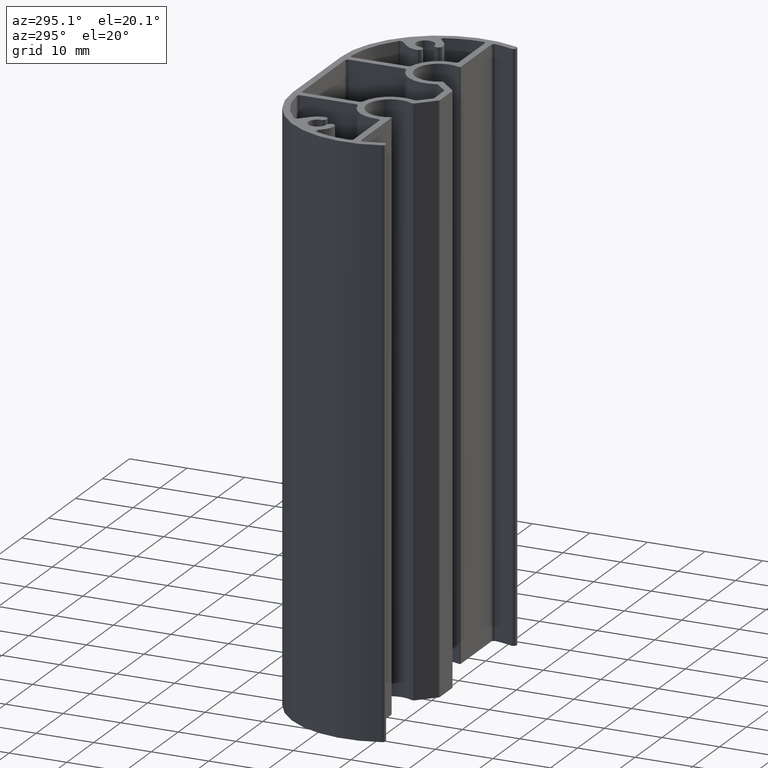
[diagram: clean part render]
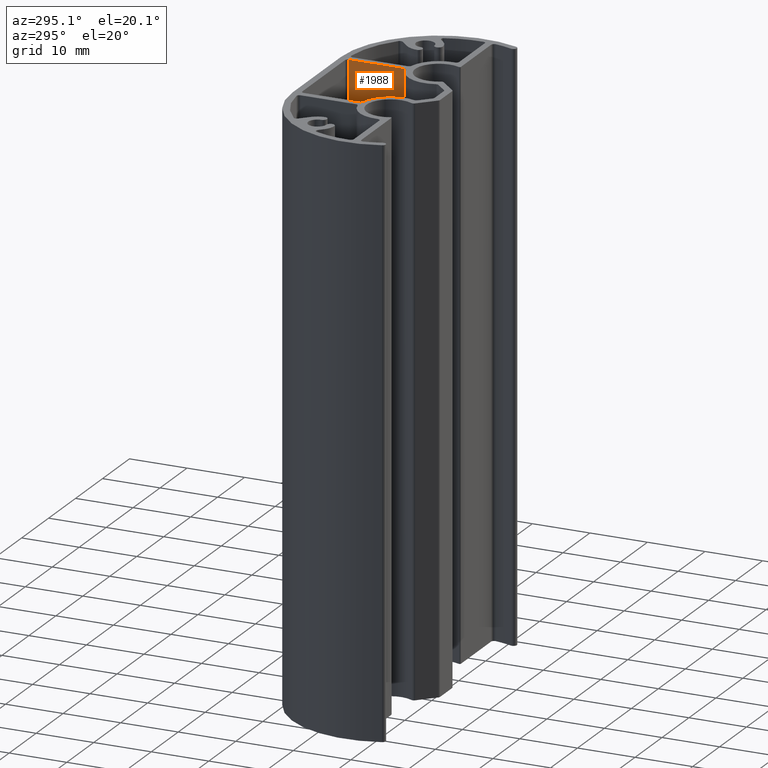
[diagram: same view with one face highlighted and labeled with its STEP entity id]
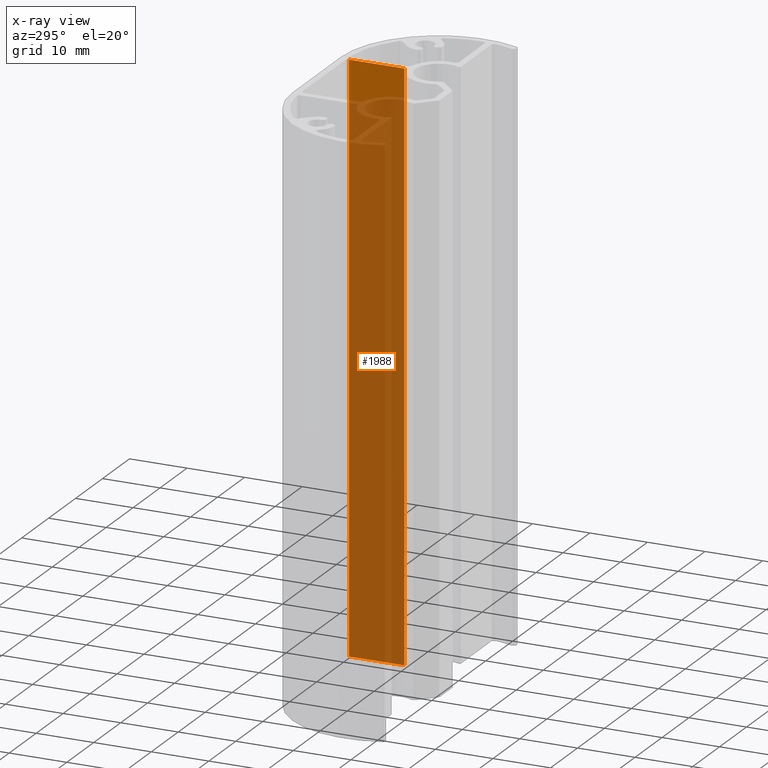
[diagram: x-ray of the same camera — body ghosted, the highlighted face saturated]
A machine part, auxiliary view. The second image highlights one B-rep face of the part: STEP entity #1988.
The next image is the same camera in x-ray: the body ghosted, the highlighted face saturated — about 94% of this face is hidden behind the body in this view.
In plain terms, the highlighted planar face has unit normal (-1, 0, 0).
Its self-contained STEP definition (entity closure, byte-faithful):
#867=CARTESIAN_POINT('',(8.400000000016235,-11.305265590006115,100.0));
#868=VERTEX_POINT('',#867);
#876=CARTESIAN_POINT('',(8.400000000015325,-1.699999999967758,100.0));
#877=VERTEX_POINT('',#876);
#878=CARTESIAN_POINT('',(8.400000000016235,-11.305265590006115,100.0));
#879=DIRECTION('',(0.0,1.0,0.0));
#880=VECTOR('',#879,9.605265590038357);
#881=LINE('',#878,#880);
#882=EDGE_CURVE('',#868,#877,#881,.T.);
#1253=CARTESIAN_POINT('',(8.400000000015325,-1.699999999967758,200.0));
#1254=VERTEX_POINT('',#1253);
#1262=CARTESIAN_POINT('',(8.400000000016235,-11.305265590006115,200.0));
#1263=VERTEX_POINT('',#1262);
#1264=CARTESIAN_POINT('',(8.400000000016235,-11.305265590006115,200.0));
#1265=DIRECTION('',(0.0,1.0,0.0));
#1266=VECTOR('',#1265,9.605265590038357);
#1267=LINE('',#1264,#1266);
#1268=EDGE_CURVE('',#1263,#1254,#1267,.T.);
#1961=CARTESIAN_POINT('',(8.400000000016235,-11.305265590006115,200.0));
#1962=DIRECTION('',(0.0,0.0,-1.0));
#1963=VECTOR('',#1962,100.0);
#1964=LINE('',#1961,#1963);
#1965=EDGE_CURVE('',#1263,#868,#1964,.T.);
#1972=CARTESIAN_POINT('',(8.400000000016235,-11.305265590006115,200.0));
#1973=DIRECTION('',(-1.0,0.0,0.0));
#1974=DIRECTION('',(0.0,1.0,0.0));
#1975=AXIS2_PLACEMENT_3D('',#1972,#1973,#1974);
#1976=PLANE('',#1975);
#1977=ORIENTED_EDGE('',*,*,#1268,.T.);
#1978=CARTESIAN_POINT('',(8.400000000015325,-1.699999999967758,200.0));
#1979=DIRECTION('',(0.0,0.0,-1.0));
#1980=VECTOR('',#1979,100.0);
#1981=LINE('',#1978,#1980);
#1982=EDGE_CURVE('',#1254,#877,#1981,.T.);
#1983=ORIENTED_EDGE('',*,*,#1982,.T.);
#1984=ORIENTED_EDGE('',*,*,#882,.F.);
#1985=ORIENTED_EDGE('',*,*,#1965,.F.);
#1986=EDGE_LOOP('',(#1977,#1983,#1984,#1985));
#1987=FACE_OUTER_BOUND('',#1986,.T.);
#1988=ADVANCED_FACE('',(#1987),#1976,.T.);